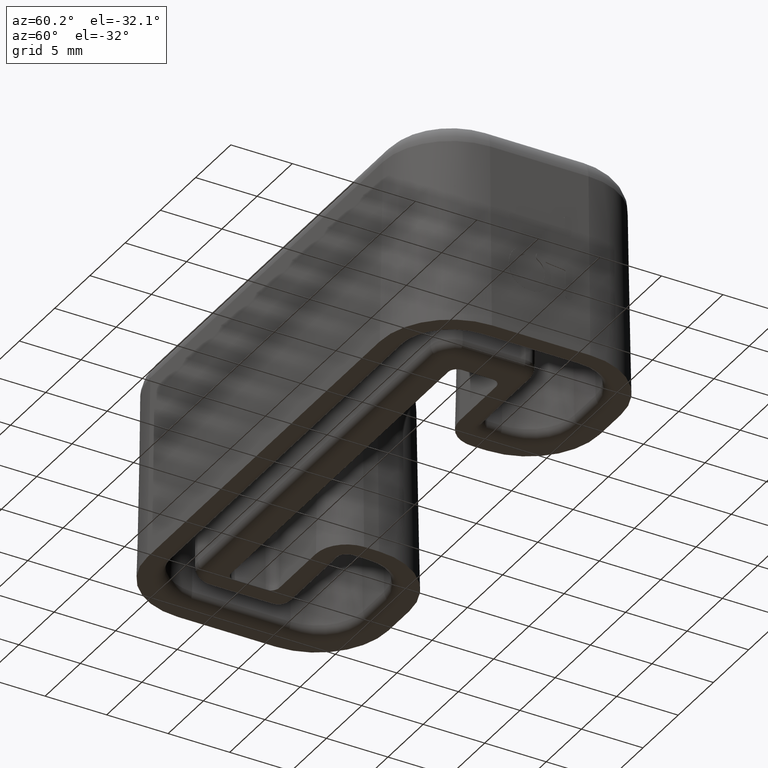
[diagram: clean part render]
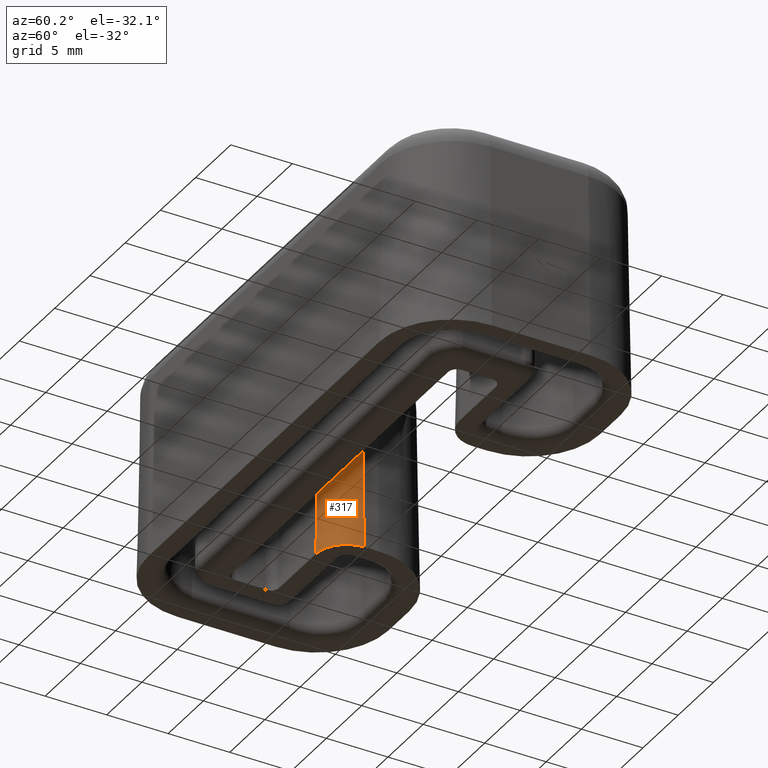
[diagram: same view with one face highlighted and labeled with its STEP entity id]
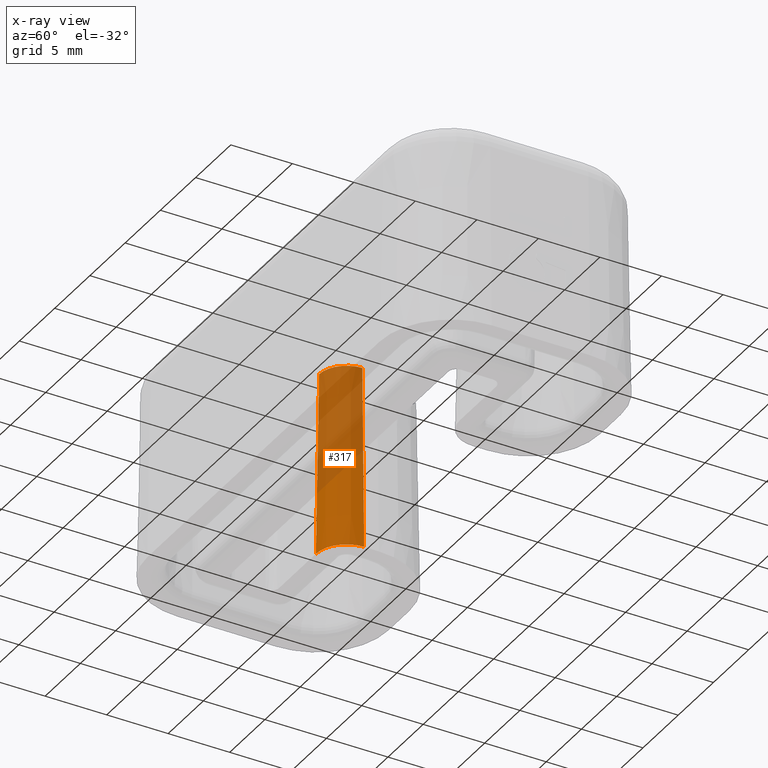
[diagram: x-ray of the same camera — body ghosted, the highlighted face saturated]
A machine part, auxiliary view. The second image highlights one B-rep face of the part: STEP entity #317.
The next image is the same camera in x-ray: the body ghosted, the highlighted face saturated — about 57% of this face is hidden behind the body in this view.
In plain terms, the highlighted conical surface has half-angle 1 deg.
Its self-contained STEP definition (entity closure, byte-faithful):
#317=ADVANCED_FACE('',(#682),#683,.T.);
#682=FACE_OUTER_BOUND('',#1104,.T.);
#683=CONICAL_SURFACE('',#1105,2.2,0.0174532925199416);
#1104=EDGE_LOOP('',(#2704,#2705,#2706,#2707));
#1105=AXIS2_PLACEMENT_3D('',#2708,#2709,#2710);
#2704=ORIENTED_EDGE('',*,*,#3308,.T.);
#2705=ORIENTED_EDGE('',*,*,#3137,.T.);
#2706=ORIENTED_EDGE('',*,*,#3309,.F.);
#2707=ORIENTED_EDGE('',*,*,#3287,.T.);
#2708=CARTESIAN_POINT('',(-10.2,10.3,17.0));
#2709=DIRECTION('',(-0.0,-0.0,-1.0));
#2710=DIRECTION('',(-1.0,0.0,0.0));
#3137=EDGE_CURVE('',#3774,#3784,#3786,.F.);
#3287=EDGE_CURVE('',#4029,#4027,#4030,.T.);
#3308=EDGE_CURVE('',#4027,#3774,#4066,.T.);
#3309=EDGE_CURVE('',#4029,#3784,#4067,.T.);
#3774=VERTEX_POINT('',#5298);
#3784=VERTEX_POINT('',#5310);
#3786=CIRCLE('',#5312,2.23430086408141);
#4027=VERTEX_POINT('',#5616);
#4029=VERTEX_POINT('',#5619);
#4030=CIRCLE('',#5620,2.49673610377971);
#4066=LINE('',#5668,#5669);
#4067=LINE('',#5670,#5671);
#5298=CARTESIAN_POINT('',(-7.96569913591859,10.3,15.0349048128745));
#5310=CARTESIAN_POINT('',(-10.2,8.06569913591861,15.0349048128745));
#5312=AXIS2_PLACEMENT_3D('',#5964,#5965,#5966);
#5616=CARTESIAN_POINT('',(-7.7032638962203,10.3,0.0));
#5619=CARTESIAN_POINT('',(-10.2,7.80326389622031,0.0));
#5620=AXIS2_PLACEMENT_3D('',#6286,#6287,#6288);
#5668=CARTESIAN_POINT('',(-8.0,10.3,17.0));
#5669=VECTOR('',#6325,1000.0);
#5670=CARTESIAN_POINT('',(-10.2,8.1,17.0));
#5671=VECTOR('',#6326,1000.0);
#5964=CARTESIAN_POINT('',(-10.2,10.3,15.0349048128745));
#5965=DIRECTION('',(0.0,0.0,1.0));
#5966=DIRECTION('',(1.0,0.0,0.0));
#6286=CARTESIAN_POINT('',(-10.2,10.3,0.0));
#6287=DIRECTION('',(0.0,0.0,1.0));
#6288=DIRECTION('',(1.0,0.0,0.0));
#6325=DIRECTION('',(-0.0174524064372835,0.0,0.999847695156391));
#6326=DIRECTION('',(0.0,0.0174524064372835,0.999847695156391));